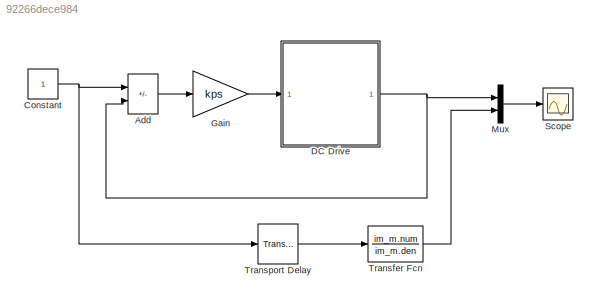
MODEL slx_92266dece984
KIND model
CONFIG AbsTol = auto
CONFIG EnableMultiTasking = off
CONFIG FixedStep = Ts
CONFIG MaxStep = Ts
CONFIG MinStep = auto
CONFIG RelTol = 1e-3
CONFIG SampleTimeConstraint = Unconstrained
CONFIG SolverName = VariableStepAuto
CONFIG StartTime = 0.0
CONFIG StopTime = Tmdl
BLOCK [Sum] Add
  IconShape = rectangular
  Inputs = +-
  Ports = [2, 1]
BLOCK [Constant] Constant
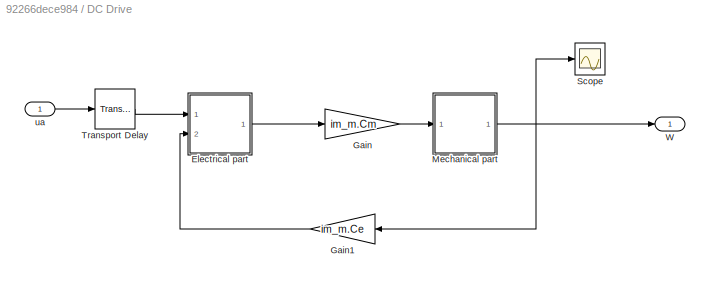
BLOCK [SubSystem] DC Drive
  Ports = [1, 1]
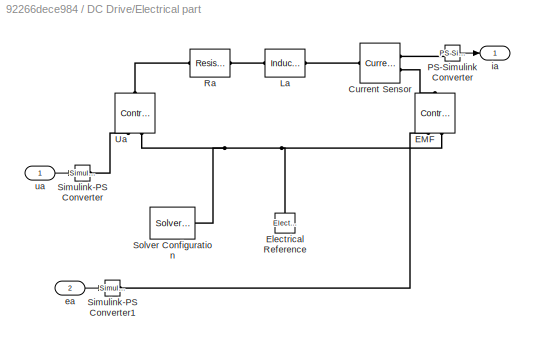
BLOCK [SubSystem] DC Drive/Electrical part
  Ports = [2, 1]
BLOCK [Reference] DC Drive/Electrical part/Current Sensor  REF=fl_lib/Electrical/Electrical Sensors/Current Sensor
  Ports = [0, 0, 0, 0, 0, 1, 2]
  SourceBlock = fl_lib/Electrical/Electrical Sensors/Current Sensor
  SourceType = Current Sensor
BLOCK [Reference] DC Drive/Electrical part/EMF  REF=fl_lib/Electrical/Electrical Sources/Controlled Voltage
Source
  NameLocation = right
  Ports = [0, 0, 0, 0, 0, 1, 2]
  SourceBlock = fl_lib/Electrical/Electrical Sources/Controlled Voltage\nSource
  SourceType = Controlled Voltage\nSource
BLOCK [Reference] DC Drive/Electrical part/Electrical Reference  REF=fl_lib/Electrical/Electrical Elements/Electrical Reference
  NameLocation = right
  Ports = [0, 0, 0, 0, 0, 1]
  SourceBlock = fl_lib/Electrical/Electrical Elements/Electrical Reference
  SourceType = Electrical Reference
BLOCK [Reference] DC Drive/Electrical part/La  REF=fl_lib/Electrical/Electrical Elements/Inductor
  Ports = [0, 0, 0, 0, 0, 1, 1]
  SourceBlock = fl_lib/Electrical/Electrical Elements/Inductor
  SourceType = Inductor
BLOCK [Reference] DC Drive/Electrical part/PS-Simulink Converter  REF=nesl_utility/PS-Simulink
Converter
  Ports = [0, 1, 0, 0, 0, 1]
  SourceBlock = nesl_utility/PS-Simulink\nConverter
  SourceType = PS-Simulink\nConverter
BLOCK [Reference] DC Drive/Electrical part/Ra  REF=fl_lib/Electrical/Electrical Elements/Resistor
  Ports = [0, 0, 0, 0, 0, 1, 1]
  SourceBlock = fl_lib/Electrical/Electrical Elements/Resistor
  SourceType = Resistor
BLOCK [Reference] DC Drive/Electrical part/Simulink-PS Converter  REF=nesl_utility/Simulink-PS
Converter
  Ports = [1, 0, 0, 0, 0, 0, 1]
  SourceBlock = nesl_utility/Simulink-PS\nConverter
  SourceType = Simulink-PS\nConverter
BLOCK [Reference] DC Drive/Electrical part/Simulink-PS Converter1  REF=nesl_utility/Simulink-PS
Converter
  Ports = [1, 0, 0, 0, 0, 0, 1]
  SourceBlock = nesl_utility/Simulink-PS\nConverter
  SourceType = Simulink-PS\nConverter
BLOCK [Reference] DC Drive/Electrical part/Solver Configuration  REF=nesl_utility/Solver
Configuration
  Ports = [0, 0, 0, 0, 0, 0, 1]
  SourceBlock = nesl_utility/Solver\nConfiguration
  SourceType = Solver\nConfiguration
BLOCK [Reference] DC Drive/Electrical part/Ua  REF=fl_lib/Electrical/Electrical Sources/Controlled Voltage
Source
  NameLocation = right
  Ports = [0, 0, 0, 0, 0, 1, 2]
  SourceBlock = fl_lib/Electrical/Electrical Sources/Controlled Voltage\nSource
  SourceType = Controlled Voltage\nSource
BLOCK [Inport] DC Drive/Electrical part/ea
  Port = 2
BLOCK [Outport] DC Drive/Electrical part/ia
BLOCK [Inport] DC Drive/Electrical part/ua
BLOCK [Gain] DC Drive/Gain
  Gain = im_m.Cm
BLOCK [Gain] DC Drive/Gain1
  Gain = im_m.Ce
  NameLocation = top
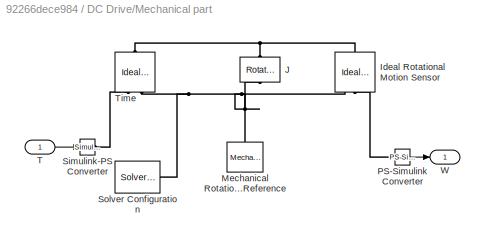
BLOCK [SubSystem] DC Drive/Mechanical part
  Ports = [1, 1]
BLOCK [Reference] DC Drive/Mechanical part/Ideal Rotational Motion Sensor  REF=fl_lib/Mechanical/Mechanical Sensors/Ideal Rotational
Motion Sensor
  NameLocation = left
  Ports = [0, 0, 0, 0, 0, 1, 3]
  SourceBlock = fl_lib/Mechanical/Mechanical Sensors/Ideal Rotational\nMotion Sensor
  SourceType = Ideal Rotational\nMotion Sensor
BLOCK [Reference] DC Drive/Mechanical part/J  REF=fl_lib/Mechanical/Rotational Elements/Rotational Inerter
  NameLocation = left
  Ports = [0, 0, 0, 0, 0, 1, 1]
  SourceBlock = fl_lib/Mechanical/Rotational Elements/Rotational Inerter
  SourceType = Rotational Inerter
BLOCK [Reference] DC Drive/Mechanical part/Mechanical Rotational Reference  REF=fl_lib/Mechanical/Rotational Elements/Mechanical
Rotational Reference
  NameLocation = right
  Ports = [0, 0, 0, 0, 0, 1]
  SourceBlock = fl_lib/Mechanical/Rotational Elements/Mechanical\nRotational Reference
  SourceType = Mechanical\nRotational Reference
BLOCK [Reference] DC Drive/Mechanical part/PS-Simulink Converter  REF=nesl_utility/PS-Simulink
Converter
  Ports = [0, 1, 0, 0, 0, 1]
  SourceBlock = nesl_utility/PS-Simulink\nConverter
  SourceType = PS-Simulink\nConverter
BLOCK [Reference] DC Drive/Mechanical part/Simulink-PS Converter  REF=nesl_utility/Simulink-PS
Converter
  Ports = [1, 0, 0, 0, 0, 0, 1]
  SourceBlock = nesl_utility/Simulink-PS\nConverter
  SourceType = Simulink-PS\nConverter
BLOCK [Reference] DC Drive/Mechanical part/Solver Configuration  REF=nesl_utility/Solver
Configuration
  Ports = [0, 0, 0, 0, 0, 0, 1]
  SourceBlock = nesl_utility/Solver\nConfiguration
  SourceType = Solver\nConfiguration
BLOCK [Inport] DC Drive/Mechanical part/T
BLOCK [Reference] DC Drive/Mechanical part/Time  REF=fl_lib/Mechanical/Mechanical Sources/Ideal Torque Source
  NameLocation = right
  Ports = [0, 0, 0, 0, 0, 1, 2]
  SourceBlock = fl_lib/Mechanical/Mechanical Sources/Ideal Torque Source
  SourceType = Ideal Torque Source
BLOCK [Outport] DC Drive/Mechanical part/W
BLOCK [Scope] DC Drive/Scope
  Floating = off
  NumInputPorts = 1
  Ports = [1]
  ScopeSpecificationString = Simulink.scopes.TimeScopeBlockCfg('CurrentConfiguration', extmgr.ConfigurationSet(extmgr.Configuration('Core','General UI',true),extmgr.Configuration('Core','Source UI',true),extmgr.Configuration('Sources','WiredSimulink',true,'DataLoggingVariableName','ScopeData1'),extmgr.Configuration('Visuals','Time Domain',true,'SerializedDisplays',{struct('MinYLimReal','-0.25053','MaxYLimReal','2.24986','YLab...<+1374ch>
BLOCK [TransportDelay] DC Drive/Transport Delay
  DelayTime = 0.001
  Ports = [1, 1]
BLOCK [Outport] DC Drive/W
BLOCK [Inport] DC Drive/ua
BLOCK [Gain] Gain
  Gain = kps
BLOCK [Mux] Mux
  DisplayOption = bar
  Inputs = 2
  Ports = [2, 1]
BLOCK [Scope] Scope
  Floating = off
  NumInputPorts = 1
  Ports = [1]
  ScopeSpecificationString = Simulink.scopes.TimeScopeBlockCfg('CurrentConfiguration', extmgr.ConfigurationSet(extmgr.Configuration('Core','General UI',true),extmgr.Configuration('Core','Source UI',true),extmgr.Configuration('Sources','WiredSimulink',true,'DataLogging',true,'DataLoggingVariableName','y','DataLoggingSaveFormat','Array'),extmgr.Configuration('Visuals','Time Domain',true,'SerializedDisplays',{struct('MinYLimReal...<+1535ch>
BLOCK [TransferFcn] Transfer Fcn
  Denominator = im_m.den
  Numerator = im_m.num
BLOCK [TransportDelay] Transport Delay
  DelayTime = 0.001
  Ports = [1, 1]
LINE Add:1 -> Gain:1
NET Constant:1 -> Add:1, Transport Delay:1
LINE DC Drive/Electrical part/PS-Simulink Converter:1 -> DC Drive/Electrical part/ia:1
LINE DC Drive/Electrical part/ea:1 -> DC Drive/Electrical part/Simulink-PS Converter1:1
LINE DC Drive/Electrical part/ua:1 -> DC Drive/Electrical part/Simulink-PS Converter:1
LINE DC Drive/Electrical part:1 -> DC Drive/Gain:1
LINE DC Drive/Gain1:1 -> DC Drive/Electrical part:2
LINE DC Drive/Gain:1 -> DC Drive/Mechanical part:1
LINE DC Drive/Mechanical part/PS-Simulink Converter:1 -> DC Drive/Mechanical part/W:1
LINE DC Drive/Mechanical part/T:1 -> DC Drive/Mechanical part/Simulink-PS Converter:1
NET DC Drive/Mechanical part:1 -> DC Drive/Gain1:1, DC Drive/Scope:1, DC Drive/W:1
LINE DC Drive/Transport Delay:1 -> DC Drive/Electrical part:1
LINE DC Drive/ua:1 -> DC Drive/Transport Delay:1
NET DC Drive:1 -> Add:2, Mux:1
LINE Gain:1 -> DC Drive:1
LINE Mux:1 -> Scope:1
LINE Transfer Fcn:1 -> Mux:2
LINE Transport Delay:1 -> Transfer Fcn:1
PLINE DC Drive/Electrical part/Current Sensor:LConn1 -- DC Drive/Electrical part/La:RConn1
PLINE DC Drive/Electrical part/Current Sensor:RConn1 -- DC Drive/Electrical part/PS-Simulink Converter:LConn1
PLINE DC Drive/Electrical part/Current Sensor:RConn2 -- DC Drive/Electrical part/EMF:LConn1
PLINE DC Drive/Electrical part/EMF:RConn1 -- DC Drive/Electrical part/Simulink-PS Converter1:RConn1
PNET net1: DC Drive/Electrical part/EMF:RConn2 -- DC Drive/Electrical part/Electrical Reference:LConn1 -- DC Drive/Electrical part/Solver Configuration:RConn1 -- DC Drive/Electrical part/Ua:RConn2
PLINE DC Drive/Electrical part/La:LConn1 -- DC Drive/Electrical part/Ra:RConn1
PLINE DC Drive/Electrical part/Ra:LConn1 -- DC Drive/Electrical part/Ua:LConn1
PLINE DC Drive/Electrical part/Simulink-PS Converter:RConn1 -- DC Drive/Electrical part/Ua:RConn1
PNET net2: DC Drive/Mechanical part/Ideal Rotational Motion Sensor:LConn1 -- DC Drive/Mechanical part/J:LConn1 -- DC Drive/Mechanical part/Time:LConn1
PNET net3: DC Drive/Mechanical part/Ideal Rotational Motion Sensor:RConn1 -- DC Drive/Mechanical part/J:RConn1 -- DC Drive/Mechanical part/Mechanical Rotational Reference:LConn1 -- DC Drive/Mechanical part/Solver Configuration:RConn1 -- DC Drive/Mechanical part/Time:RConn2
PLINE DC Drive/Mechanical part/Ideal Rotational Motion Sensor:RConn2 -- DC Drive/Mechanical part/PS-Simulink Converter:LConn1
PLINE DC Drive/Mechanical part/Simulink-PS Converter:RConn1 -- DC Drive/Mechanical part/Time:RConn1
note: NET lines group one-source signal fan-out (src -> all destinations, sorted); 1:1 wires keep LINE; PNET lines group multi-terminal physical nets as a canonical sorted terminal list (undirected conserving connections); 2-terminal nets keep the pairwise PLINE form
